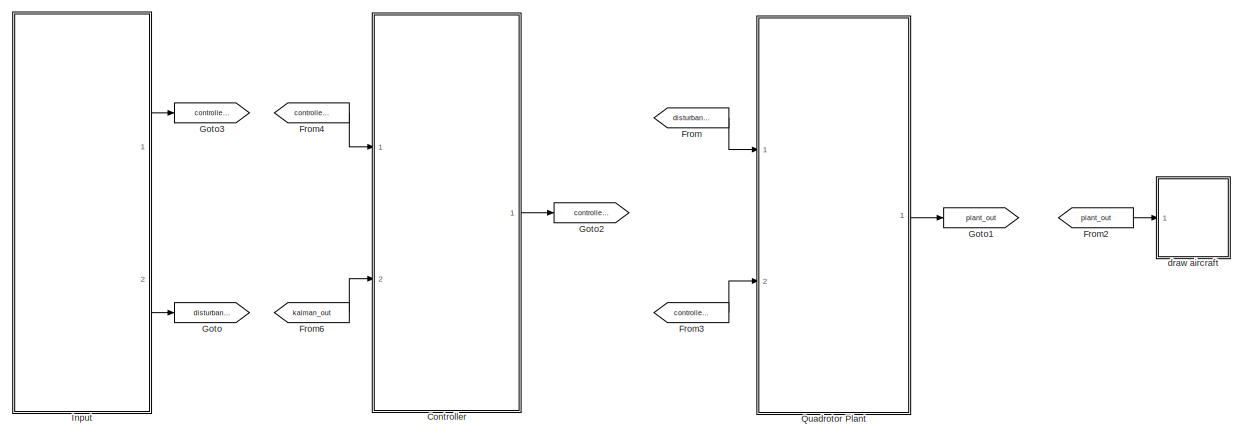
[diagram: root canvas - part 1/2, full width, top band]
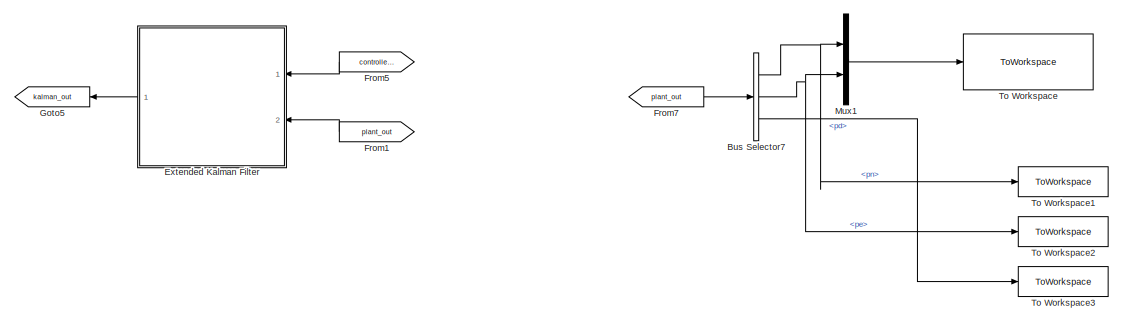
[diagram: root canvas - part 2/2, bottom center region]
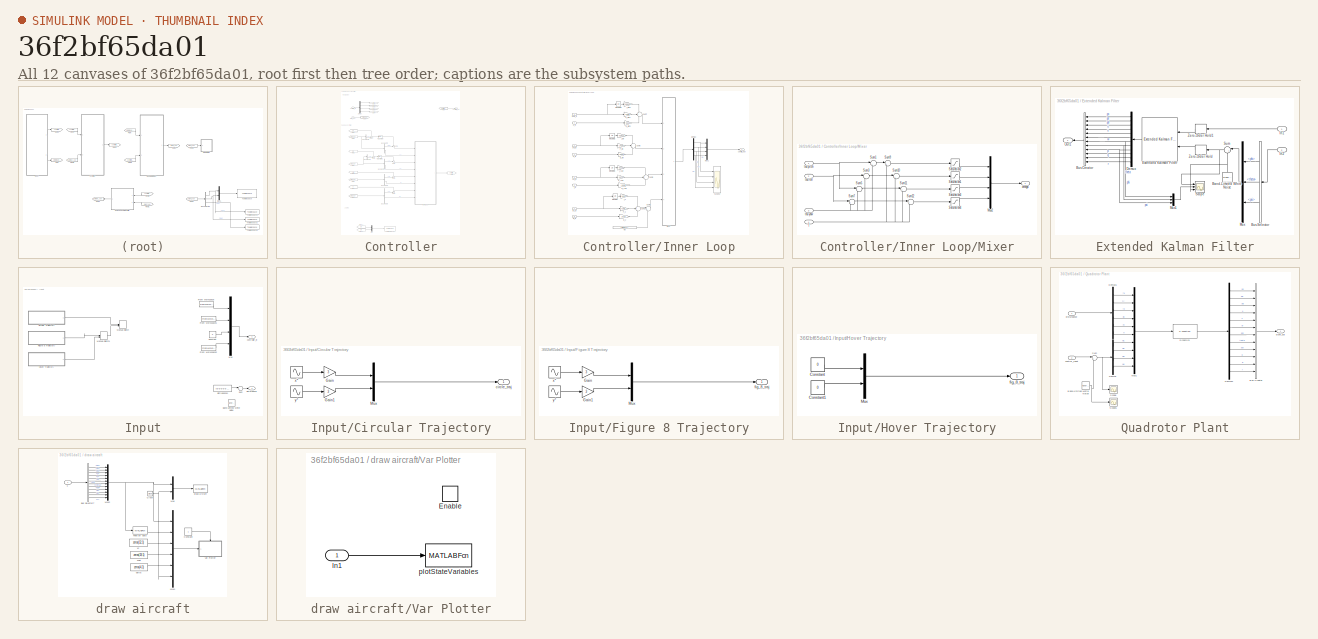
[diagram: thumbnail index - all 12 canvases of the model, root first then tree order]
MODEL slx_36f2bf65da01
KIND model
CONFIG AbsTol = auto
CONFIG EnableMultiTasking = on
CONFIG FixedStep = auto
CONFIG InitFcn = param_quad
CONFIG MaxStep = auto
CONFIG MinStep = auto
CONFIG PreLoadFcn = kalman_covariances
CONFIG RelTol = 1e-3
CONFIG SampleTimeConstraint = Unconstrained
CONFIG Solver = ode45
CONFIG SolverName = ode45
CONFIG StartTime = 0.0
CONFIG StopTime = 500
WORKSPACE source: mxarray member
WORKSPACE traj_x = [0 0.201 0.4 0.601 0.8 1 1.2 1.4 1.6 1.801 2 2.2 ... (4684 elements, 2342x2)]
WORKSPACE traj_y = [0 0.201 0.4 0.601 0.8 1 1.2 1.4 1.6 1.801 2 2.2 ... (4684 elements, 2342x2)]
WORKSPACE traj_z = [0 0.201 0.4 0.601 0.8 1 1.2 1.4 1.6 1.801 2 2.2 ... (4684 elements, 2342x2)]
WORKSPACE vel_x = [0 0 0.201 0.4 0.601 0.8 1 1.2 1.4 1.6 1.801 2 ... (4686 elements, 2343x2)]
WORKSPACE vel_y = [0 0 0.201 0.4 0.601 0.8 1 1.2 1.4 1.6 1.801 2 ... (4686 elements, 2343x2)]
WORKSPACE vel_z = [0 0 0.201 0.4 0.601 0.8 1 1.2 1.4 1.6 1.801 2 ... (4686 elements, 2343x2)]
BLOCK [BusSelector] Bus Selector7
  OutputSignals = pn,pe,pd
  Ports = [1, 3]
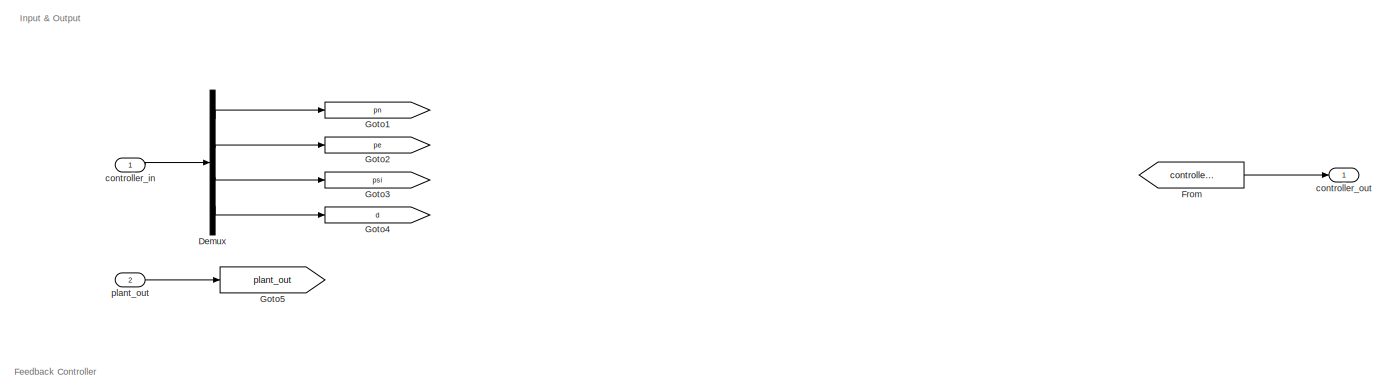
[diagram: Controller - part 1/3, full width, top band]
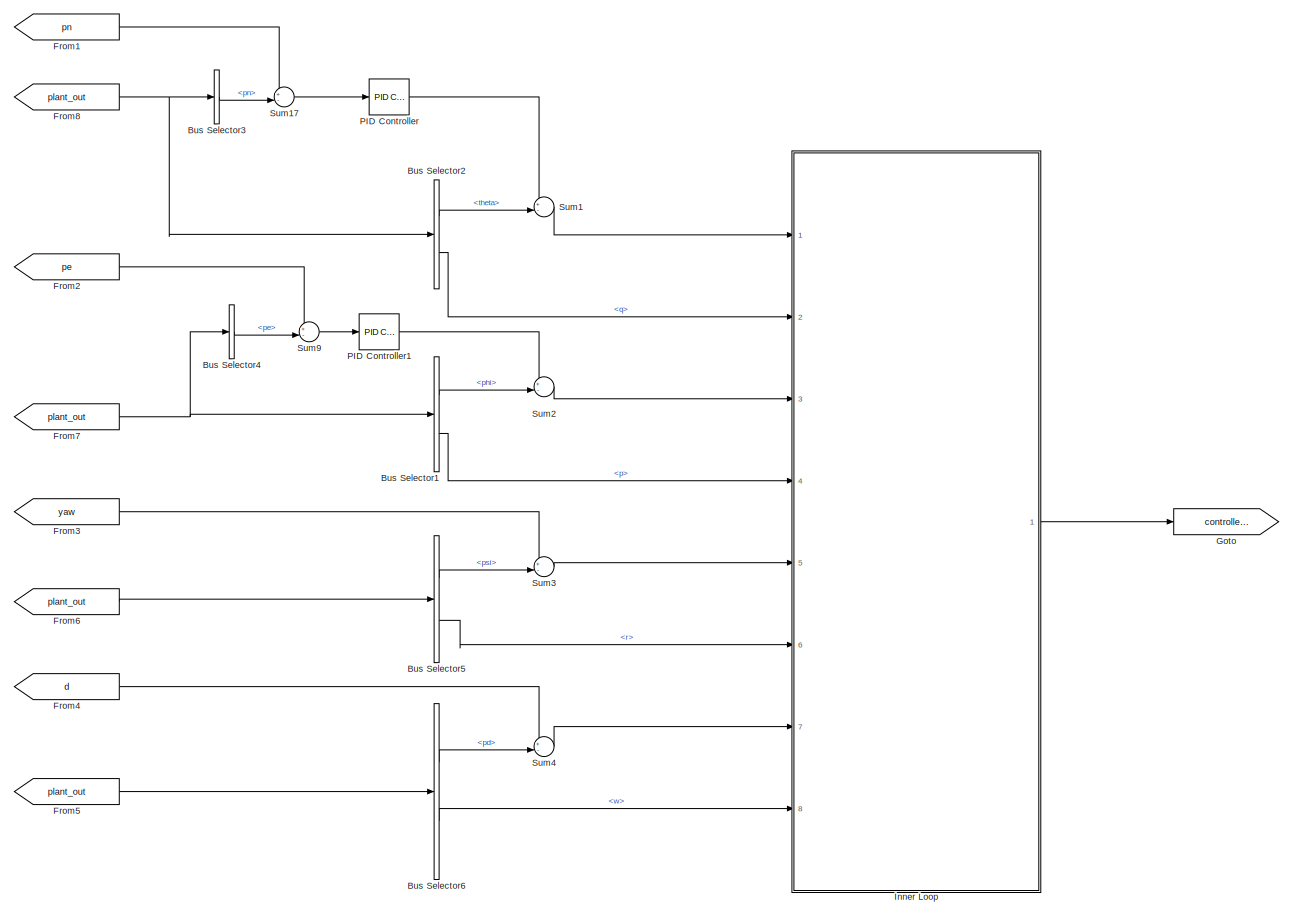
[diagram: Controller - part 2/3, full width, middle band]
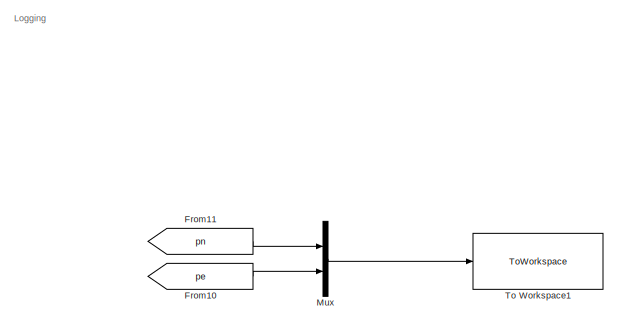
[diagram: Controller - part 3/3, bottom left region]
BLOCK [SubSystem] Controller
  Ports = [2, 1]
  RequestExecContextInheritance = off
BLOCK [BusSelector] Controller/Bus Selector1
  OutputSignals = phi,p
  Ports = [1, 2]
BLOCK [BusSelector] Controller/Bus Selector2
  OutputSignals = theta,q
  Ports = [1, 2]
BLOCK [BusSelector] Controller/Bus Selector3
  OutputSignals = pn
  Ports = [1, 1]
BLOCK [BusSelector] Controller/Bus Selector4
  OutputSignals = pe
  Ports = [1, 1]
BLOCK [BusSelector] Controller/Bus Selector5
  OutputSignals = psi,r
  Ports = [1, 2]
BLOCK [BusSelector] Controller/Bus Selector6
  OutputSignals = pd,w
  Ports = [1, 2]
BLOCK [Demux] Controller/Demux
  Ports = [1, 4]
BLOCK [From] Controller/From
  GotoTag = controller_out
BLOCK [From] Controller/From1
  GotoTag = pn
BLOCK [From] Controller/From10
  GotoTag = pe
BLOCK [From] Controller/From11
  GotoTag = pn
BLOCK [From] Controller/From2
  GotoTag = pe
BLOCK [From] Controller/From3
  GotoTag = yaw
BLOCK [From] Controller/From4
  GotoTag = d
BLOCK [From] Controller/From5
  GotoTag = plant_out
BLOCK [From] Controller/From6
  GotoTag = plant_out
BLOCK [From] Controller/From7
  GotoTag = plant_out
BLOCK [From] Controller/From8
  GotoTag = plant_out
BLOCK [Goto] Controller/Goto
  GotoTag = controller_out
BLOCK [Goto] Controller/Goto1
  GotoTag = pn
BLOCK [Goto] Controller/Goto2
  GotoTag = pe
BLOCK [Goto] Controller/Goto3
  GotoTag = psi
BLOCK [Goto] Controller/Goto4
  GotoTag = d
BLOCK [Goto] Controller/Goto5
  GotoTag = plant_out
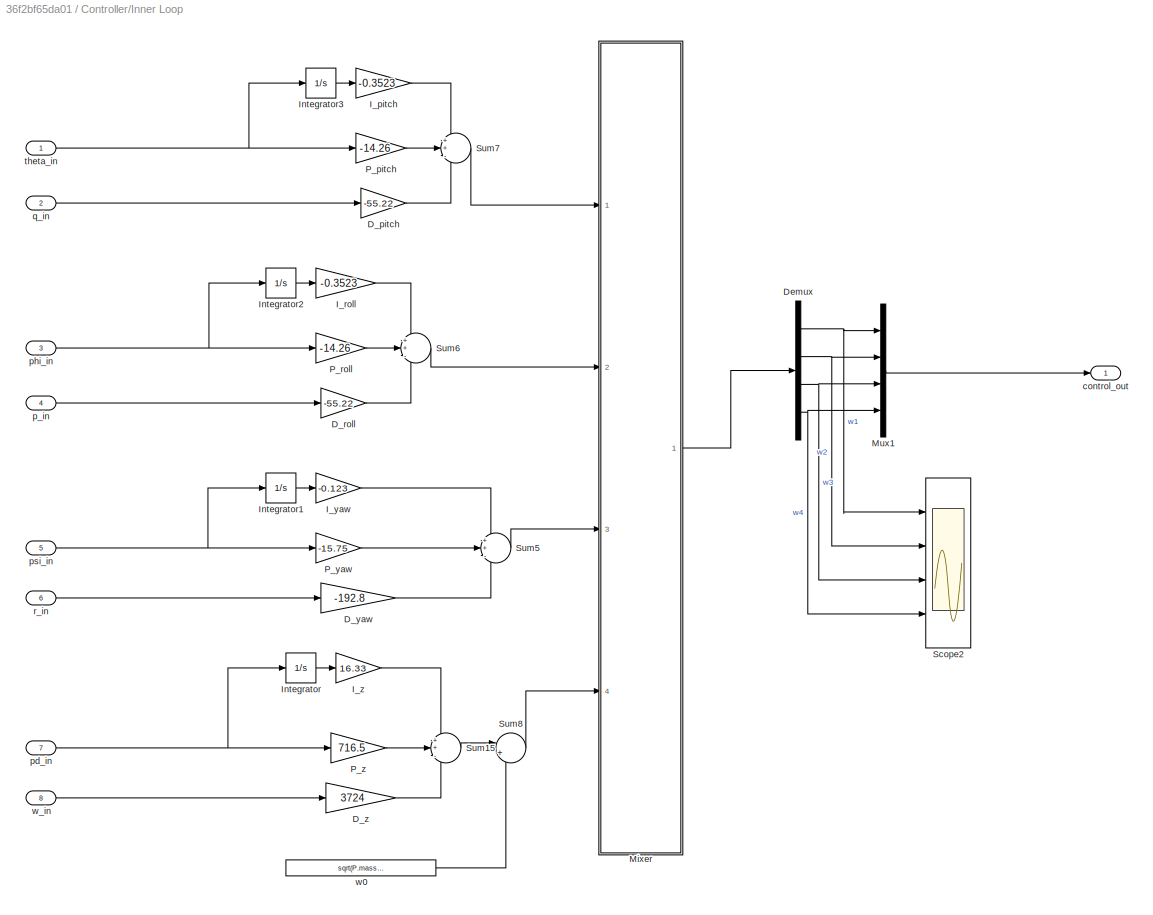
BLOCK [SubSystem] Controller/Inner Loop
  Ports = [8, 1]
  RequestExecContextInheritance = off
BLOCK [Gain] Controller/Inner Loop/D_pitch
  Gain = -55.22
BLOCK [Gain] Controller/Inner Loop/D_roll
  Gain = -55.22
BLOCK [Gain] Controller/Inner Loop/D_yaw
  Gain = -192.8
BLOCK [Gain] Controller/Inner Loop/D_z
  Gain = 3724
BLOCK [Demux] Controller/Inner Loop/Demux
  Ports = [1, 4]
BLOCK [Gain] Controller/Inner Loop/I_pitch
  Gain = -0.3523
BLOCK [Gain] Controller/Inner Loop/I_roll
  Gain = -0.3523
BLOCK [Gain] Controller/Inner Loop/I_yaw
  Gain = -0.123
BLOCK [Gain] Controller/Inner Loop/I_z
  Gain = 16.33
BLOCK [Integrator] Controller/Inner Loop/Integrator
  Ports = [1, 1]
BLOCK [Integrator] Controller/Inner Loop/Integrator1
  Ports = [1, 1]
BLOCK [Integrator] Controller/Inner Loop/Integrator2
  Ports = [1, 1]
BLOCK [Integrator] Controller/Inner Loop/Integrator3
  Ports = [1, 1]
BLOCK [SubSystem] Controller/Inner Loop/Mixer
  Ports = [4, 1]
  RequestExecContextInheritance = off
BLOCK [Mux] Controller/Inner Loop/Mixer/Mux2
  DisplayOption = bar
  Ports = [4, 1]
BLOCK [Saturate] Controller/Inner Loop/Mixer/Saturation1
  LowerLimit = 700
  UpperLimit = 8000
BLOCK [Saturate] Controller/Inner Loop/Mixer/Saturation2
  LowerLimit = 700
  UpperLimit = 8000
BLOCK [Saturate] Controller/Inner Loop/Mixer/Saturation3
  LowerLimit = 700
  UpperLimit = 8000
BLOCK [Saturate] Controller/Inner Loop/Mixer/Saturation4
  LowerLimit = 700
  UpperLimit = 8000
BLOCK [Sum] Controller/Inner Loop/Mixer/Sum1
  InputSameDT = on
  Inputs = |++
  OutDataTypeStr = Inherit: Same as first input
  Ports = [2, 1]
  SaturateOnIntegerOverflow = on
BLOCK [Sum] Controller/Inner Loop/Mixer/Sum10
  InputSameDT = on
  Inputs = |++
  OutDataTypeStr = Inherit: Same as first input
  Ports = [2, 1]
  SaturateOnIntegerOverflow = on
BLOCK [Sum] Controller/Inner Loop/Mixer/Sum11
  InputSameDT = on
  Inputs = |++
  OutDataTypeStr = Inherit: Same as first input
  Ports = [2, 1]
  SaturateOnIntegerOverflow = on
BLOCK [Sum] Controller/Inner Loop/Mixer/Sum12
  InputSameDT = on
  Inputs = |++
  OutDataTypeStr = Inherit: Same as first input
  Ports = [2, 1]
  SaturateOnIntegerOverflow = on
BLOCK [Sum] Controller/Inner Loop/Mixer/Sum3
  InputSameDT = on
  Inputs = |--
  OutDataTypeStr = Inherit: Same as first input
  Ports = [2, 1]
  SaturateOnIntegerOverflow = on
BLOCK [Sum] Controller/Inner Loop/Mixer/Sum5
  InputSameDT = on
  Inputs = |-+
  OutDataTypeStr = Inherit: Same as first input
  Ports = [2, 1]
  SaturateOnIntegerOverflow = on
BLOCK [Sum] Controller/Inner Loop/Mixer/Sum7
  InputSameDT = on
  Inputs = |+-
  OutDataTypeStr = Inherit: Same as first input
  Ports = [2, 1]
  SaturateOnIntegerOverflow = on
BLOCK [Sum] Controller/Inner Loop/Mixer/Sum9
  InputSameDT = on
  Inputs = |++
  OutDataTypeStr = Inherit: Same as first input
  Ports = [2, 1]
  SaturateOnIntegerOverflow = on
BLOCK [Inport] Controller/Inner Loop/Mixer/T
  Port = 4
BLOCK [Outport] Controller/Inner Loop/Mixer/omega
  VectorParamsAs1DForOutWhenUnconnected = off
BLOCK [Inport] Controller/Inner Loop/Mixer/tau pitch
BLOCK [Inport] Controller/Inner Loop/Mixer/tau roll
  Port = 2
BLOCK [Inport] Controller/Inner Loop/Mixer/tau yaw
  Port = 3
BLOCK [Mux] Controller/Inner Loop/Mux1
  DisplayOption = bar
  Ports = [4, 1]
BLOCK [Gain] Controller/Inner Loop/P_pitch
  Gain = -14.26
BLOCK [Gain] Controller/Inner Loop/P_roll
  Gain = -14.26
BLOCK [Gain] Controller/Inner Loop/P_yaw
  Gain = -15.75
BLOCK [Gain] Controller/Inner Loop/P_z
  Gain = 716.5
BLOCK [Scope] Controller/Inner Loop/Scope2
  Floating = off
  NumInputPorts = 4
  Ports = [4]
  ScopeSpecificationString = Simulink.scopes.TimeScopeBlockCfg('CurrentConfiguration', extmgr.ConfigurationSet(extmgr.Configuration('Core','General UI',true),extmgr.Configuration('Core','Source UI',true),extmgr.Configuration('Sources','WiredSimulink',true,'DataLoggingLimitDataPoints',true,'DataLoggingSaveFormat','Array','DataLoggingDecimation','1','DataLoggingDecimateData',true),extmgr.Configuration('Visuals','Time Domain',tr...<+3668ch>
BLOCK [Sum] Controller/Inner Loop/Sum15
  Inputs = ++-
  Ports = [3, 1]
BLOCK [Sum] Controller/Inner Loop/Sum5
  Inputs = ++-
  Ports = [3, 1]
BLOCK [Sum] Controller/Inner Loop/Sum6
  Inputs = ++-
  Ports = [3, 1]
BLOCK [Sum] Controller/Inner Loop/Sum7
  Inputs = ++-
  Ports = [3, 1]
BLOCK [Sum] Controller/Inner Loop/Sum8
  Inputs = |++
  Ports = [2, 1]
BLOCK [Outport] Controller/Inner Loop/control_out
  VectorParamsAs1DForOutWhenUnconnected = off
BLOCK [Inport] Controller/Inner Loop/p_in
  Port = 4
BLOCK [Inport] Controller/Inner Loop/pd_in
  Port = 7
BLOCK [Inport] Controller/Inner Loop/phi_in
  Port = 3
BLOCK [Inport] Controller/Inner Loop/psi_in
  Port = 5
BLOCK [Inport] Controller/Inner Loop/q_in
  Port = 2
BLOCK [Inport] Controller/Inner Loop/r_in
  Port = 6
BLOCK [Inport] Controller/Inner Loop/theta_in
BLOCK [Constant] Controller/Inner Loop/w0
  SampleTime = 0
  Value = sqrt(P.mass*P.gravity/P.ct/4)
BLOCK [Inport] Controller/Inner Loop/w_in
  Port = 8
BLOCK [Mux] Controller/Mux
  DisplayOption = bar
  Inputs = 2
  Ports = [2, 1]
BLOCK [Reference] Controller/PID Controller  REF=simulink/Continuous/PID Controller
  Ports = [1, 1]
  SourceBlock = simulink/Continuous/PID Controller
  SourceProductBaseCode = SL
  SourceType = PID 1dof
BLOCK [Reference] Controller/PID Controller1  REF=simulink/Continuous/PID Controller
  Ports = [1, 1]
  SourceBlock = simulink/Continuous/PID Controller
  SourceProductBaseCode = SL
  SourceType = PID 1dof
BLOCK [Sum] Controller/Sum1
  Inputs = +-|
  Ports = [2, 1]
BLOCK [Sum] Controller/Sum17
  Inputs = +-|
  Ports = [2, 1]
BLOCK [Sum] Controller/Sum2
  Inputs = +-|
  Ports = [2, 1]
BLOCK [Sum] Controller/Sum3
  Inputs = +-|
  Ports = [2, 1]
BLOCK [Sum] Controller/Sum4
  Inputs = +-|
  Ports = [2, 1]
BLOCK [Sum] Controller/Sum9
  Inputs = +-|
  Ports = [2, 1]
BLOCK [ToWorkspace] Controller/To Workspace1
  FixptAsFi = on
  MaxDataPoints = inf
  Ports = [1]
  SampleTime = -1
  SaveFormat = Timeseries
  VariableName = desired_trajectory
BLOCK [Inport] Controller/controller_in
BLOCK [Outport] Controller/controller_out
  VectorParamsAs1DForOutWhenUnconnected = off
BLOCK [Inport] Controller/plant_out
  Port = 2
BLOCK [SubSystem] Extended Kalman Filter
  Ports = [2, 1]
  RequestExecContextInheritance = off
BLOCK [Reference] Extended Kalman Filter/Band-Limited White Noise  REF=simulink/Sources/Band-Limited
White Noise
  NameLocation = right
  Ports = [0, 1]
  SourceBlock = simulink/Sources/Band-Limited\nWhite Noise
  SourceProductBaseCode = SL
  SourceType = Band-Limited White Noise.
BLOCK [BusCreator] Extended Kalman Filter/Bus Creator
  DisplayOption = bar
  InheritFromInputs = on
  Inputs = 12
  Ports = [12, 1]
BLOCK [BusSelector] Extended Kalman Filter/Bus Selector
  OutputSignals = phi,theta,psi
  Ports = [1, 3]
BLOCK [Demux] Extended Kalman Filter/Demux
  Outputs = 12
  Ports = [1, 12]
BLOCK [Reference] Extended Kalman Filter/Extended Kalman Filter  REF=sharedTrackingLibrary/Extended Kalman Filter
  Ports = [2, 1]
  SourceBlock = sharedTrackingLibrary/Extended Kalman Filter
  SourceProductBaseCode = CT,DR,TF,ID,NV,AR,RO,VE
  SourceType = Extended Kalman Filter
BLOCK [Inport] Extended Kalman Filter/In1
BLOCK [Inport] Extended Kalman Filter/In2
  Port = 2
BLOCK [Mux] Extended Kalman Filter/Mux
  DisplayOption = bar
  Inputs = 3
  Ports = [3, 1]
BLOCK [Mux] Extended Kalman Filter/Mux1
  DisplayOption = bar
  Inputs = 3
  Ports = [3, 1]
BLOCK [Outport] Extended Kalman Filter/Out1
  VectorParamsAs1DForOutWhenUnconnected = off
BLOCK [Scope] Extended Kalman Filter/Scope
  Floating = off
  NumInputPorts = 3
  Ports = [3]
  ScopeSpecificationString = Simulink.scopes.TimeScopeBlockCfg('CurrentConfiguration', extmgr.ConfigurationSet(extmgr.Configuration('Core','General UI',true),extmgr.Configuration('Core','Source UI',true),extmgr.Configuration('Sources','WiredSimulink',true,'DataLoggingVariableName','ScopeData1'),extmgr.Configuration('Visuals','Time Domain',true,'SerializedDisplays',{struct('MinYLimReal','-0.29062','MaxYLimReal','0.39036','YLab...<+2920ch>
BLOCK [Sum] Extended Kalman Filter/Sum
  Inputs = |++
  NameLocation = top
  Ports = [2, 1]
BLOCK [ZeroOrderHold] Extended Kalman Filter/Zero-Order Hold
  SampleTime = .005
BLOCK [ZeroOrderHold] Extended Kalman Filter/Zero-Order Hold1
  SampleTime = .005
BLOCK [From] From
  GotoTag = disturbance
BLOCK [From] From1
  GotoTag = plant_out
BLOCK [From] From2
  GotoTag = plant_out
BLOCK [From] From3
  GotoTag = controller_out
BLOCK [From] From4
  GotoTag = controller_in
BLOCK [From] From5
  GotoTag = controller_out
BLOCK [From] From6
  GotoTag = kalman_out
BLOCK [From] From7
  GotoTag = plant_out
BLOCK [Goto] Goto
  GotoTag = disturbance
BLOCK [Goto] Goto1
  GotoTag = plant_out
BLOCK [Goto] Goto2
  GotoTag = controller_out
BLOCK [Goto] Goto3
  GotoTag = controller_in
BLOCK [Goto] Goto5
  GotoTag = kalman_out
BLOCK [SubSystem] Input
  Ports = [0, 2]
  RequestExecContextInheritance = off
BLOCK [Reference] Input/Band-Limited White Noise  REF=simulink/Sources/Band-Limited
White Noise
  Ports = [0, 1]
  SourceBlock = simulink/Sources/Band-Limited\nWhite Noise
  SourceProductBaseCode = SL
  SourceType = Band-Limited White Noise.
BLOCK [SubSystem] Input/Circular Trajectory
  Ports = [0, 1]
  RequestExecContextInheritance = off
BLOCK [Gain] Input/Circular Trajectory/Gain
  Gain = 3
BLOCK [Gain] Input/Circular Trajectory/Gain1
  Gain = 3
BLOCK [Mux] Input/Circular Trajectory/Mux
  DisplayOption = bar
  Inputs = 2
  Ports = [2, 1]
BLOCK [Outport] Input/Circular Trajectory/circle_traj
  VectorParamsAs1DForOutWhenUnconnected = off
BLOCK [Sin] Input/Circular Trajectory/x*
  Amplitude = 50
  Frequency = 2*pi*.0125
  Phase = -pi/2
  Ports = [0, 1]
  SampleTime = 0
BLOCK [Sin] Input/Circular Trajectory/y*
  Amplitude = 50
  Frequency = 2*pi*.0125
  Ports = [0, 1]
  SampleTime = 0
BLOCK [Constant] Input/Constant
  Value = 0
BLOCK [SubSystem] Input/Figure 8 Trajectory
  Ports = [0, 1]
  RequestExecContextInheritance = off
BLOCK [Gain] Input/Figure 8 Trajectory/Gain
  Gain = 3
BLOCK [Gain] Input/Figure 8 Trajectory/Gain1
  Gain = 3
BLOCK [Mux] Input/Figure 8 Trajectory/Mux
  DisplayOption = bar
  Inputs = 2
  Ports = [2, 1]
BLOCK [Outport] Input/Figure 8 Trajectory/fig_8_traj
  VectorParamsAs1DForOutWhenUnconnected = off
BLOCK [Sin] Input/Figure 8 Trajectory/x*
  Amplitude = 50
  Frequency = 4*pi*.0125
  Ports = [0, 1]
  SampleTime = 0
BLOCK [Sin] Input/Figure 8 Trajectory/y*
  Amplitude = 50
  Frequency = 2*pi*.0125
  Ports = [0, 1]
  SampleTime = 0
BLOCK [FromWorkspace] Input/From Workspace
  OutputAfterFinalValue = Holding final value
  SampleTime = -1
  VariableName = traj_x
BLOCK [FromWorkspace] Input/From Workspace1
  OutputAfterFinalValue = Holding final value
  SampleTime = -1
  VariableName = traj_y
BLOCK [FromWorkspace] Input/From Workspace2
  OutputAfterFinalValue = Holding final value
  SampleTime = -1
  VariableName = traj_z
BLOCK [SubSystem] Input/Hover Trajectory
  Ports = [0, 1]
  RequestExecContextInheritance = off
BLOCK [Constant] Input/Hover Trajectory/Constant
  Value = 0
BLOCK [Constant] Input/Hover Trajectory/Constant1
  Value = 0
BLOCK [Mux] Input/Hover Trajectory/Mux
  DisplayOption = bar
  Inputs = 2
  Ports = [2, 1]
BLOCK [Outport] Input/Hover Trajectory/fig_8_traj
  VectorParamsAs1DForOutWhenUnconnected = off
BLOCK [ManualSwitch] Input/Manual Switch
  CurrentSetting = 0
BLOCK [ManualSwitch] Input/Manual Switch1
BLOCK [Mux] Input/Mux
  DisplayOption = bar
  Ports = [4, 1]
BLOCK [Sum] Input/Sum
  Inputs = |++
  Ports = [2, 1]
BLOCK [Outport] Input/controller_in
  VectorParamsAs1DForOutWhenUnconnected = off
BLOCK [Constant] Input/distrubance*
  SampleTime = 0
  Value = [0 0 0 0 0 0]
BLOCK [Outport] Input/disturbance
  Port = 2
  VectorParamsAs1DForOutWhenUnconnected = off
BLOCK [Mux] Mux1
  DisplayOption = bar
  Inputs = 2
  Ports = [2, 1]
BLOCK [SubSystem] Quadrotor Plant
  Ports = [2, 1]
  RequestExecContextInheritance = off
BLOCK [Reference] Quadrotor Plant/Band-Limited White Noise  REF=simulink/Sources/Band-Limited
White Noise
  Ports = [0, 1]
  SourceBlock = simulink/Sources/Band-Limited\nWhite Noise
  SourceProductBaseCode = SL
  SourceType = Band-Limited White Noise.
BLOCK [BusCreator] Quadrotor Plant/Bus Creator
  DisplayOption = bar
  InheritFromInputs = on
  Inputs = 12
  Ports = [12, 1]
BLOCK [Demux] Quadrotor Plant/Demux
  Ports = [1, 4]
BLOCK [Demux] Quadrotor Plant/Demux1
  Outputs = 6
  Ports = [1, 6]
BLOCK [Demux] Quadrotor Plant/Demux2
  Outputs = 12
  Ports = [1, 12]
BLOCK [S-Function] Quadrotor Plant/Dynamics
  EnableBusSupport = off
  FunctionName = mav_dynamics
  Parameters = P
  Ports = [1, 1]
  SFcnIsStateOwnerBlock = off
  SFunctionDeploymentMode = off
BLOCK [Mux] Quadrotor Plant/Mux1
  DisplayOption = bar
  Inputs = 10
  Ports = [10, 1]
BLOCK [Scope] Quadrotor Plant/Scope
  Floating = off
  NumInputPorts = 1
  Ports = [1]
  ScopeSpecificationString = Simulink.scopes.TimeScopeBlockCfg('CurrentConfiguration', extmgr.ConfigurationSet(extmgr.Configuration('Core','General UI',true),extmgr.Configuration('Core','Source UI',true),extmgr.Configuration('Sources','WiredSimulink',true,'DataLoggingVariableName','ScopeData1'),extmgr.Configuration('Visuals','Time Domain',true,'SerializedDisplays',{struct('MinYLimReal','4090.98708','MaxYLimReal','4123.51727',...<+1456ch>
BLOCK [Scope] Quadrotor Plant/Scope1
  Floating = off
  NumInputPorts = 1
  Ports = [1]
  ScopeSpecificationString = Simulink.scopes.TimeScopeBlockCfg('CurrentConfiguration', extmgr.ConfigurationSet(extmgr.Configuration('Core','General UI',true),extmgr.Configuration('Core','Source UI',true),extmgr.Configuration('Sources','WiredSimulink',true,'DataLoggingVariableName','ScopeData1'),extmgr.Configuration('Visuals','Time Domain',true,'SerializedDisplays',{struct('MinYLimReal','-1.56826','MaxYLimReal','2.18629','YLab...<+1547ch>
BLOCK [Sum] Quadrotor Plant/Sum
  Inputs = |++
  Ports = [2, 1]
BLOCK [Inport] Quadrotor Plant/control_input
  Port = 2
BLOCK [Inport] Quadrotor Plant/disturbance
BLOCK [Outport] Quadrotor Plant/plant_out
  VectorParamsAs1DForOutWhenUnconnected = off
BLOCK [ToWorkspace] To Workspace
  FixptAsFi = on
  MaxDataPoints = inf
  Ports = [1]
  SampleTime = -1
  SaveFormat = Timeseries
  VariableName = actual_trajectory1
BLOCK [ToWorkspace] To Workspace1
  FixptAsFi = on
  MaxDataPoints = inf
  Ports = [1]
  SampleTime = 0.25
  Save2DSignal = 2-D array (concatenate along first dimension)
  VariableName = sim_x
BLOCK [ToWorkspace] To Workspace2
  FixptAsFi = on
  MaxDataPoints = inf
  Ports = [1]
  SampleTime = 0.25
  VariableName = sim_y
BLOCK [ToWorkspace] To Workspace3
  FixptAsFi = on
  MaxDataPoints = inf
  Ports = [1]
  SampleTime = 0.25
  VariableName = sim_z
BLOCK [SubSystem] draw aircraft
  Ports = [1]
  RequestExecContextInheritance = off
BLOCK [BusSelector] draw aircraft/Bus Selector7
  OutputSignals = pn,pe,pd,u,v,w,phi,theta,psi,p,q,r
  Ports = [1, 12]
BLOCK [Clock] draw aircraft/Clock
BLOCK [Constant] draw aircraft/Constant
BLOCK [MATLABFcn] draw aircraft/Fake air data
  MATLABFcn = airdata(u)
  OutputDimensions = 6
  Ports = [1, 1]
  SampleTime = 0.1
BLOCK [Mux] draw aircraft/Mux
  DisplayOption = bar
  Inputs = 2
  Ports = [2, 1]
BLOCK [Mux] draw aircraft/Mux1
  DisplayOption = bar
  Inputs = 6
  Ports = [6, 1]
BLOCK [Mux] draw aircraft/Mux2
  DisplayOption = bar
  Inputs = 12
  Ports = [12, 1]
BLOCK [SubSystem] draw aircraft/Var Plotter
  Ports = [1, 0, 1]
  RequestExecContextInheritance = off
BLOCK [EnablePort] draw aircraft/Var Plotter/Enable
  Ports = []
BLOCK [Inport] draw aircraft/Var Plotter/In1
BLOCK [MATLABFcn] draw aircraft/Var Plotter/plotStateVariables
  MATLABFcn = plotmavstatevariables(u, 1)
  OutputDimensions = 0
  Ports = [1]
  SampleTime = 0.1
BLOCK [Constant] draw aircraft/delta
  Value = zeros(4,1)
BLOCK [MATLABFcn] draw aircraft/drawAircraft
  MATLABFcn = drawAircraft(u)
  OutputDimensions = 0
  Ports = [1]
  SampleTime = 0.1
BLOCK [Inport] draw aircraft/x
BLOCK [Constant] draw aircraft/xc
  Value = zeros(12,1)
BLOCK [Constant] draw aircraft/xhat
  Value = zeros(19,1)
ANNOTATION Controller: Feedback Controller
ANNOTATION Controller: Input & Output
ANNOTATION Controller: Logging
NET Bus Selector7:1 -> Mux1:1, To Workspace1:1
NET Bus Selector7:2 -> Mux1:2, To Workspace2:1
LINE Bus Selector7:3 -> To Workspace3:1
LINE Controller/Bus Selector1:1 -> Controller/Sum2:2
LINE Controller/Bus Selector1:2 -> Controller/Inner Loop:4
LINE Controller/Bus Selector2:1 -> Controller/Sum1:2
LINE Controller/Bus Selector2:2 -> Controller/Inner Loop:2
LINE Controller/Bus Selector3:1 -> Controller/Sum17:2
LINE Controller/Bus Selector4:1 -> Controller/Sum9:2
LINE Controller/Bus Selector5:1 -> Controller/Sum3:2
LINE Controller/Bus Selector5:2 -> Controller/Inner Loop:6
LINE Controller/Bus Selector6:1 -> Controller/Sum4:2
LINE Controller/Bus Selector6:2 -> Controller/Inner Loop:8
LINE Controller/Demux:1 -> Controller/Goto1:1
LINE Controller/Demux:2 -> Controller/Goto2:1
LINE Controller/Demux:3 -> Controller/Goto3:1
LINE Controller/Demux:4 -> Controller/Goto4:1
LINE Controller/From10:1 -> Controller/Mux:2
LINE Controller/From11:1 -> Controller/Mux:1
LINE Controller/From1:1 -> Controller/Sum17:1
LINE Controller/From2:1 -> Controller/Sum9:1
LINE Controller/From3:1 -> Controller/Sum3:1
LINE Controller/From4:1 -> Controller/Sum4:1
LINE Controller/From5:1 -> Controller/Bus Selector6:1
LINE Controller/From6:1 -> Controller/Bus Selector5:1
NET Controller/From7:1 -> Controller/Bus Selector1:1, Controller/Bus Selector4:1
NET Controller/From8:1 -> Controller/Bus Selector2:1, Controller/Bus Selector3:1
LINE Controller/From:1 -> Controller/controller_out:1
LINE Controller/Inner Loop/D_pitch:1 -> Controller/Inner Loop/Sum7:3
LINE Controller/Inner Loop/D_roll:1 -> Controller/Inner Loop/Sum6:3
LINE Controller/Inner Loop/D_yaw:1 -> Controller/Inner Loop/Sum5:3
LINE Controller/Inner Loop/D_z:1 -> Controller/Inner Loop/Sum15:3
NET Controller/Inner Loop/Demux:1 -> Controller/Inner Loop/Mux1:1, Controller/Inner Loop/Scope2:1
NET Controller/Inner Loop/Demux:2 -> Controller/Inner Loop/Mux1:2, Controller/Inner Loop/Scope2:2
NET Controller/Inner Loop/Demux:3 -> Controller/Inner Loop/Mux1:3, Controller/Inner Loop/Scope2:3
NET Controller/Inner Loop/Demux:4 -> Controller/Inner Loop/Mux1:4, Controller/Inner Loop/Scope2:4
LINE Controller/Inner Loop/I_pitch:1 -> Controller/Inner Loop/Sum7:1
LINE Controller/Inner Loop/I_roll:1 -> Controller/Inner Loop/Sum6:1
LINE Controller/Inner Loop/I_yaw:1 -> Controller/Inner Loop/Sum5:1
LINE Controller/Inner Loop/I_z:1 -> Controller/Inner Loop/Sum15:1
LINE Controller/Inner Loop/Integrator1:1 -> Controller/Inner Loop/I_yaw:1
LINE Controller/Inner Loop/Integrator2:1 -> Controller/Inner Loop/I_roll:1
LINE Controller/Inner Loop/Integrator3:1 -> Controller/Inner Loop/I_pitch:1
LINE Controller/Inner Loop/Integrator:1 -> Controller/Inner Loop/I_z:1
LINE Controller/Inner Loop/Mixer/Mux2:1 -> Controller/Inner Loop/Mixer/omega:1
LINE Controller/Inner Loop/Mixer/Saturation1:1 -> Controller/Inner Loop/Mixer/Mux2:2
LINE Controller/Inner Loop/Mixer/Saturation2:1 -> Controller/Inner Loop/Mixer/Mux2:1
LINE Controller/Inner Loop/Mixer/Saturation3:1 -> Controller/Inner Loop/Mixer/Mux2:3
LINE Controller/Inner Loop/Mixer/Saturation4:1 -> Controller/Inner Loop/Mixer/Mux2:4
LINE Controller/Inner Loop/Mixer/Sum10:1 -> Controller/Inner Loop/Mixer/Saturation1:1
LINE Controller/Inner Loop/Mixer/Sum11:1 -> Controller/Inner Loop/Mixer/Saturation3:1
LINE Controller/Inner Loop/Mixer/Sum12:1 -> Controller/Inner Loop/Mixer/Saturation4:1
LINE Controller/Inner Loop/Mixer/Sum1:1 -> Controller/Inner Loop/Mixer/Sum9:1
LINE Controller/Inner Loop/Mixer/Sum3:1 -> Controller/Inner Loop/Mixer/Sum10:1
LINE Controller/Inner Loop/Mixer/Sum5:1 -> Controller/Inner Loop/Mixer/Sum11:1
LINE Controller/Inner Loop/Mixer/Sum7:1 -> Controller/Inner Loop/Mixer/Sum12:1
LINE Controller/Inner Loop/Mixer/Sum9:1 -> Controller/Inner Loop/Mixer/Saturation2:1
NET Controller/Inner Loop/Mixer/T:1 -> Controller/Inner Loop/Mixer/Sum10:2, Controller/Inner Loop/Mixer/Sum11:2, Controller/Inner Loop/Mixer/Sum12:2, Controller/Inner Loop/Mixer/Sum9:2
NET Controller/Inner Loop/Mixer/tau pitch:1 -> Controller/Inner Loop/Mixer/Sum1:1, Controller/Inner Loop/Mixer/Sum5:1
NET Controller/Inner Loop/Mixer/tau roll:1 -> Controller/Inner Loop/Mixer/Sum3:1, Controller/Inner Loop/Mixer/Sum7:1
NET Controller/Inner Loop/Mixer/tau yaw:1 -> Controller/Inner Loop/Mixer/Sum1:2, Controller/Inner Loop/Mixer/Sum3:2, Controller/Inner Loop/Mixer/Sum5:2, Controller/Inner Loop/Mixer/Sum7:2
LINE Controller/Inner Loop/Mixer:1 -> Controller/Inner Loop/Demux:1
LINE Controller/Inner Loop/Mux1:1 -> Controller/Inner Loop/control_out:1
LINE Controller/Inner Loop/P_pitch:1 -> Controller/Inner Loop/Sum7:2
LINE Controller/Inner Loop/P_roll:1 -> Controller/Inner Loop/Sum6:2
LINE Controller/Inner Loop/P_yaw:1 -> Controller/Inner Loop/Sum5:2
LINE Controller/Inner Loop/P_z:1 -> Controller/Inner Loop/Sum15:2
LINE Controller/Inner Loop/Sum15:1 -> Controller/Inner Loop/Sum8:1
LINE Controller/Inner Loop/Sum5:1 -> Controller/Inner Loop/Mixer:3
LINE Controller/Inner Loop/Sum6:1 -> Controller/Inner Loop/Mixer:2
LINE Controller/Inner Loop/Sum7:1 -> Controller/Inner Loop/Mixer:1
LINE Controller/Inner Loop/Sum8:1 -> Controller/Inner Loop/Mixer:4
LINE Controller/Inner Loop/p_in:1 -> Controller/Inner Loop/D_roll:1
NET Controller/Inner Loop/pd_in:1 -> Controller/Inner Loop/Integrator:1, Controller/Inner Loop/P_z:1
NET Controller/Inner Loop/phi_in:1 -> Controller/Inner Loop/Integrator2:1, Controller/Inner Loop/P_roll:1
NET Controller/Inner Loop/psi_in:1 -> Controller/Inner Loop/Integrator1:1, Controller/Inner Loop/P_yaw:1
LINE Controller/Inner Loop/q_in:1 -> Controller/Inner Loop/D_pitch:1
LINE Controller/Inner Loop/r_in:1 -> Controller/Inner Loop/D_yaw:1
NET Controller/Inner Loop/theta_in:1 -> Controller/Inner Loop/Integrator3:1, Controller/Inner Loop/P_pitch:1
LINE Controller/Inner Loop/w0:1 -> Controller/Inner Loop/Sum8:2
LINE Controller/Inner Loop/w_in:1 -> Controller/Inner Loop/D_z:1
LINE Controller/Inner Loop:1 -> Controller/Goto:1
LINE Controller/Mux:1 -> Controller/To Workspace1:1
LINE Controller/PID Controller1:1 -> Controller/Sum2:1
LINE Controller/PID Controller:1 -> Controller/Sum1:1
LINE Controller/Sum17:1 -> Controller/PID Controller:1
LINE Controller/Sum1:1 -> Controller/Inner Loop:1
LINE Controller/Sum2:1 -> Controller/Inner Loop:3
LINE Controller/Sum3:1 -> Controller/Inner Loop:5
LINE Controller/Sum4:1 -> Controller/Inner Loop:7
LINE Controller/Sum9:1 -> Controller/PID Controller1:1
LINE Controller/controller_in:1 -> Controller/Demux:1
LINE Controller/plant_out:1 -> Controller/Goto5:1
LINE Controller:1 -> Goto2:1
NET Extended Kalman Filter/Band-Limited White Noise:1 -> Extended Kalman Filter/Scope:3, Extended Kalman Filter/Sum:2
LINE Extended Kalman Filter/Bus Creator:1 -> Extended Kalman Filter/Out1:1
LINE Extended Kalman Filter/Bus Selector:1 -> Extended Kalman Filter/Mux:1
LINE Extended Kalman Filter/Bus Selector:2 -> Extended Kalman Filter/Mux:2
LINE Extended Kalman Filter/Bus Selector:3 -> Extended Kalman Filter/Mux:3
LINE Extended Kalman Filter/Demux:1 -> Extended Kalman Filter/Bus Creator:1
LINE Extended Kalman Filter/Demux:10 -> Extended Kalman Filter/Bus Creator:10
LINE Extended Kalman Filter/Demux:11 -> Extended Kalman Filter/Bus Creator:11
LINE Extended Kalman Filter/Demux:12 -> Extended Kalman Filter/Bus Creator:12
LINE Extended Kalman Filter/Demux:2 -> Extended Kalman Filter/Bus Creator:2
LINE Extended Kalman Filter/Demux:3 -> Extended Kalman Filter/Bus Creator:3
LINE Extended Kalman Filter/Demux:4 -> Extended Kalman Filter/Bus Creator:4
LINE Extended Kalman Filter/Demux:5 -> Extended Kalman Filter/Bus Creator:5
LINE Extended Kalman Filter/Demux:6 -> Extended Kalman Filter/Bus Creator:6
NET Extended Kalman Filter/Demux:7 -> Extended Kalman Filter/Bus Creator:7, Extended Kalman Filter/Mux1:1
NET Extended Kalman Filter/Demux:8 -> Extended Kalman Filter/Bus Creator:8, Extended Kalman Filter/Mux1:2
NET Extended Kalman Filter/Demux:9 -> Extended Kalman Filter/Bus Creator:9, Extended Kalman Filter/Mux1:3
LINE Extended Kalman Filter/Extended Kalman Filter:1 -> Extended Kalman Filter/Demux:1
LINE Extended Kalman Filter/In1:1 -> Extended Kalman Filter/Zero-Order Hold1:1
LINE Extended Kalman Filter/In2:1 -> Extended Kalman Filter/Bus Selector:1
LINE Extended Kalman Filter/Mux1:1 -> Extended Kalman Filter/Scope:2
LINE Extended Kalman Filter/Mux:1 -> Extended Kalman Filter/Sum:1
NET Extended Kalman Filter/Sum:1 -> Extended Kalman Filter/Scope:1, Extended Kalman Filter/Zero-Order Hold:1
LINE Extended Kalman Filter/Zero-Order Hold1:1 -> Extended Kalman Filter/Extended Kalman Filter:1
LINE Extended Kalman Filter/Zero-Order Hold:1 -> Extended Kalman Filter/Extended Kalman Filter:2
LINE Extended Kalman Filter:1 -> Goto5:1
LINE From1:1 -> Extended Kalman Filter:2
LINE From2:1 -> draw aircraft:1
LINE From3:1 -> Quadrotor Plant:2
LINE From4:1 -> Controller:1
LINE From5:1 -> Extended Kalman Filter:1
LINE From6:1 -> Controller:2
LINE From7:1 -> Bus Selector7:1
LINE From:1 -> Quadrotor Plant:1
LINE Input/Circular Trajectory/Gain1:1 -> Input/Circular Trajectory/Mux:2
LINE Input/Circular Trajectory/Gain:1 -> Input/Circular Trajectory/Mux:1
LINE Input/Circular Trajectory/Mux:1 -> Input/Circular Trajectory/circle_traj:1
LINE Input/Circular Trajectory/x*:1 -> Input/Circular Trajectory/Gain:1
LINE Input/Circular Trajectory/y*:1 -> Input/Circular Trajectory/Gain1:1
LINE Input/Circular Trajectory:1 -> Input/Manual Switch:1
LINE Input/Constant:1 -> Input/Mux:3
LINE Input/Figure 8 Trajectory/Gain1:1 -> Input/Figure 8 Trajectory/Mux:2
LINE Input/Figure 8 Trajectory/Gain:1 -> Input/Figure 8 Trajectory/Mux:1
LINE Input/Figure 8 Trajectory/Mux:1 -> Input/Figure 8 Trajectory/fig_8_traj:1
LINE Input/Figure 8 Trajectory/x*:1 -> Input/Figure 8 Trajectory/Gain:1
LINE Input/Figure 8 Trajectory/y*:1 -> Input/Figure 8 Trajectory/Gain1:1
LINE Input/Figure 8 Trajectory:1 -> Input/Manual Switch1:1
LINE Input/From Workspace1:1 -> Input/Mux:2
LINE Input/From Workspace2:1 -> Input/Mux:4
LINE Input/From Workspace:1 -> Input/Mux:1
LINE Input/Hover Trajectory/Constant1:1 -> Input/Hover Trajectory/Mux:2
LINE Input/Hover Trajectory/Constant:1 -> Input/Hover Trajectory/Mux:1
LINE Input/Hover Trajectory/Mux:1 -> Input/Hover Trajectory/fig_8_traj:1
LINE Input/Hover Trajectory:1 -> Input/Manual Switch1:2
LINE Input/Manual Switch1:1 -> Input/Manual Switch:2
LINE Input/Mux:1 -> Input/controller_in:1
LINE Input/Sum:1 -> Input/disturbance:1
LINE Input/distrubance*:1 -> Input/Sum:1
LINE Input:1 -> Goto3:1
LINE Input:2 -> Goto:1
LINE Mux1:1 -> To Workspace:1
NET Quadrotor Plant/Band-Limited White Noise:1 -> Quadrotor Plant/Scope1:1, Quadrotor Plant/Sum:2
LINE Quadrotor Plant/Bus Creator:1 -> Quadrotor Plant/plant_out:1
LINE Quadrotor Plant/Demux1:1 -> Quadrotor Plant/Mux1:1
LINE Quadrotor Plant/Demux1:2 -> Quadrotor Plant/Mux1:2
LINE Quadrotor Plant/Demux1:3 -> Quadrotor Plant/Mux1:3
LINE Quadrotor Plant/Demux1:4 -> Quadrotor Plant/Mux1:4
LINE Quadrotor Plant/Demux1:5 -> Quadrotor Plant/Mux1:5
LINE Quadrotor Plant/Demux1:6 -> Quadrotor Plant/Mux1:6
LINE Quadrotor Plant/Demux2:1 -> Quadrotor Plant/Bus Creator:1
LINE Quadrotor Plant/Demux2:10 -> Quadrotor Plant/Bus Creator:10
LINE Quadrotor Plant/Demux2:11 -> Quadrotor Plant/Bus Creator:11
LINE Quadrotor Plant/Demux2:12 -> Quadrotor Plant/Bus Creator:12
LINE Quadrotor Plant/Demux2:2 -> Quadrotor Plant/Bus Creator:2
LINE Quadrotor Plant/Demux2:3 -> Quadrotor Plant/Bus Creator:3
LINE Quadrotor Plant/Demux2:4 -> Quadrotor Plant/Bus Creator:4
LINE Quadrotor Plant/Demux2:5 -> Quadrotor Plant/Bus Creator:5
LINE Quadrotor Plant/Demux2:6 -> Quadrotor Plant/Bus Creator:6
LINE Quadrotor Plant/Demux2:7 -> Quadrotor Plant/Bus Creator:7
LINE Quadrotor Plant/Demux2:8 -> Quadrotor Plant/Bus Creator:8
LINE Quadrotor Plant/Demux2:9 -> Quadrotor Plant/Bus Creator:9
LINE Quadrotor Plant/Demux:1 -> Quadrotor Plant/Mux1:7
LINE Quadrotor Plant/Demux:2 -> Quadrotor Plant/Mux1:8
LINE Quadrotor Plant/Demux:3 -> Quadrotor Plant/Mux1:9
LINE Quadrotor Plant/Demux:4 -> Quadrotor Plant/Mux1:10
LINE Quadrotor Plant/Dynamics:1 -> Quadrotor Plant/Demux2:1
LINE Quadrotor Plant/Mux1:1 -> Quadrotor Plant/Dynamics:1
NET Quadrotor Plant/Sum:1 -> Quadrotor Plant/Demux:1, Quadrotor Plant/Scope:1
LINE Quadrotor Plant/control_input:1 -> Quadrotor Plant/Sum:1
LINE Quadrotor Plant/disturbance:1 -> Quadrotor Plant/Demux1:1
LINE Quadrotor Plant:1 -> Goto1:1
LINE draw aircraft/Bus Selector7:1 -> draw aircraft/Mux2:1
LINE draw aircraft/Bus Selector7:10 -> draw aircraft/Mux2:10
LINE draw aircraft/Bus Selector7:11 -> draw aircraft/Mux2:11
LINE draw aircraft/Bus Selector7:12 -> draw aircraft/Mux2:12
LINE draw aircraft/Bus Selector7:2 -> draw aircraft/Mux2:2
LINE draw aircraft/Bus Selector7:3 -> draw aircraft/Mux2:3
LINE draw aircraft/Bus Selector7:4 -> draw aircraft/Mux2:4
LINE draw aircraft/Bus Selector7:5 -> draw aircraft/Mux2:5
LINE draw aircraft/Bus Selector7:6 -> draw aircraft/Mux2:6
LINE draw aircraft/Bus Selector7:7 -> draw aircraft/Mux2:7
LINE draw aircraft/Bus Selector7:8 -> draw aircraft/Mux2:8
LINE draw aircraft/Bus Selector7:9 -> draw aircraft/Mux2:9
NET draw aircraft/Clock:1 -> draw aircraft/Mux1:6, draw aircraft/Mux:2
LINE draw aircraft/Constant:1 -> draw aircraft/Var Plotter:enable
LINE draw aircraft/Fake air data:1 -> draw aircraft/Mux1:2
LINE draw aircraft/Mux1:1 -> draw aircraft/Var Plotter:1
NET draw aircraft/Mux2:1 -> draw aircraft/Fake air data:1, draw aircraft/Mux1:1, draw aircraft/Mux:1
LINE draw aircraft/Mux:1 -> draw aircraft/drawAircraft:1
LINE draw aircraft/Var Plotter/In1:1 -> draw aircraft/Var Plotter/plotStateVariables:1
LINE draw aircraft/delta:1 -> draw aircraft/Mux1:5
LINE draw aircraft/x:1 -> draw aircraft/Bus Selector7:1
LINE draw aircraft/xc:1 -> draw aircraft/Mux1:3
LINE draw aircraft/xhat:1 -> draw aircraft/Mux1:4
note: NET lines group one-source signal fan-out (src -> all destinations, sorted); 1:1 wires keep LINE
